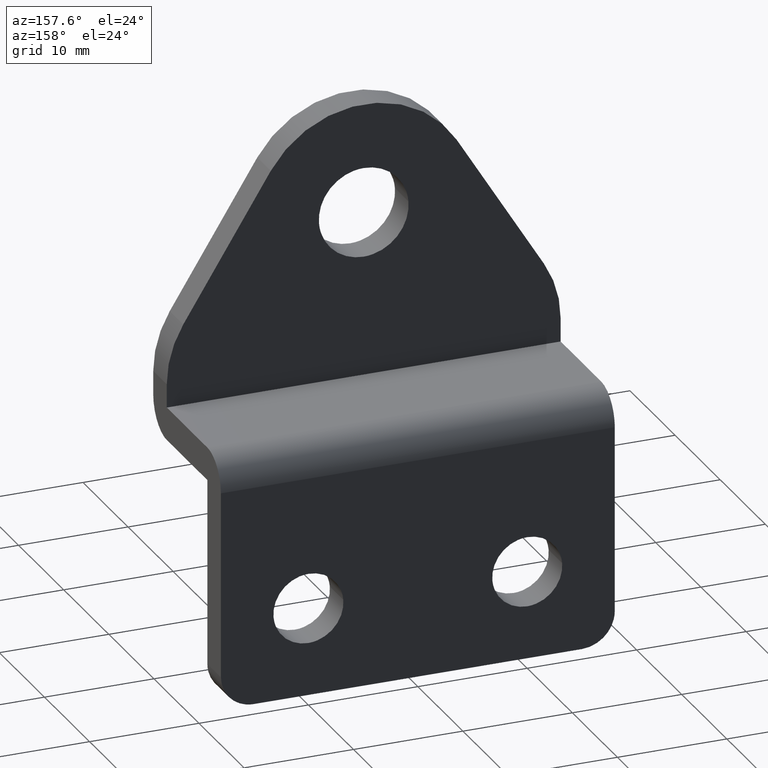
[diagram: clean part render]
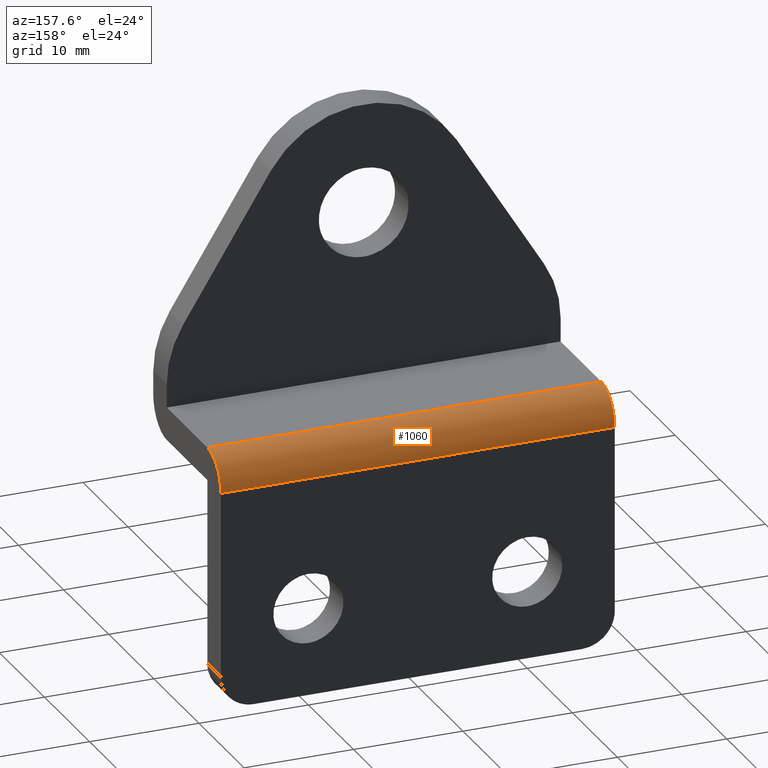
[diagram: same view with one face highlighted and labeled with its STEP entity id]
A machine part, auxiliary view. The second image highlights one B-rep face of the part: STEP entity #1060.
In plain terms, the highlighted face is a freeform B-spline surface patch.
Its self-contained STEP definition (entity closure, byte-faithful):
#1000=CARTESIAN_POINT('',(-18.900007175000049,-3.078530844923621,22.998971974926668));
#1001=CARTESIAN_POINT('',(18.922500179375010,-3.078530844923621,22.998971974926668));
#1002=CARTESIAN_POINT('',(-18.900007175000056,0.224954401664160,23.085476780498787));
#1003=CARTESIAN_POINT('',(18.922500179375010,0.224954401664160,23.085476780498787));
#1004=CARTESIAN_POINT('',(-18.900007175000056,-0.007426561857573,19.789039773122049));
#1005=CARTESIAN_POINT('',(18.922500179375014,-0.007426561857573,19.789039773122049));
#1013=(BOUNDED_SURFACE()B_SPLINE_SURFACE(1,2,((#1000,#1002,#1004),(#1001,#1003,#1005)),.UNSPECIFIED.,.F.,.F.,.U.)B_SPLINE_SURFACE_WITH_KNOTS((2,2),(3,3),(0.0,37.822507354375063),(0.0,5.313427032265082),.UNSPECIFIED.)GEOMETRIC_REPRESENTATION_ITEM()RATIONAL_B_SPLINE_SURFACE(((1.0,0.670944223154768,0.996392648609106),(1.0,0.670944223154768,0.996392648609106)))REPRESENTATION_ITEM('')SURFACE());
#1014=CARTESIAN_POINT('',(-18.000007000000000,-3.0,23.0));
#1015=VERTEX_POINT('',#1014);
#1016=CARTESIAN_POINT('',(-18.000007000000000,0.0,20.0));
#1017=VERTEX_POINT('',#1016);
#1018=CARTESIAN_POINT('',(-18.000007000000050,-3.0,23.0));
#1019=CARTESIAN_POINT('',(-18.000007000000050,0.0,22.999999999999993));
#1020=CARTESIAN_POINT('',(-18.000007000000050,0.0,20.0));
#1028=(BOUNDED_CURVE()B_SPLINE_CURVE(2,(#1018,#1019,#1020),.UNSPECIFIED.,.F.,.U.)CURVE()GEOMETRIC_REPRESENTATION_ITEM()QUASI_UNIFORM_CURVE()RATIONAL_B_SPLINE_CURVE((1.0,0.707106781186548,1.0))REPRESENTATION_ITEM(''));
#1029=EDGE_CURVE('',#1015,#1017,#1028,.T.);
#1030=ORIENTED_EDGE('',*,*,#1029,.F.);
#1031=CARTESIAN_POINT('',(18.0,-3.0,23.0));
#1032=VERTEX_POINT('',#1031);
#1033=CARTESIAN_POINT('',(18.0,-3.0,23.0));
#1034=CARTESIAN_POINT('',(-18.000007000000000,-3.0,23.0));
#1035=QUASI_UNIFORM_CURVE('',1,(#1033,#1034),.UNSPECIFIED.,.F.,.U.);
#1036=EDGE_CURVE('',#1032,#1015,#1035,.T.);
#1037=ORIENTED_EDGE('',*,*,#1036,.F.);
#1038=CARTESIAN_POINT('',(18.0,0.0,20.0));
#1039=VERTEX_POINT('',#1038);
#1040=CARTESIAN_POINT('',(18.0,0.0,20.0));
#1041=CARTESIAN_POINT('',(18.000000000000007,0.0,22.999999999999993));
#1042=CARTESIAN_POINT('',(18.0,-3.0,23.0));
#1050=(BOUNDED_CURVE()B_SPLINE_CURVE(2,(#1040,#1041,#1042),.UNSPECIFIED.,.F.,.U.)CURVE()GEOMETRIC_REPRESENTATION_ITEM()QUASI_UNIFORM_CURVE()RATIONAL_B_SPLINE_CURVE((1.0,0.707106781186548,1.0))REPRESENTATION_ITEM(''));
#1051=EDGE_CURVE('',#1039,#1032,#1050,.T.);
#1052=ORIENTED_EDGE('',*,*,#1051,.F.);
#1053=CARTESIAN_POINT('',(-18.000007000000000,0.0,20.0));
#1054=CARTESIAN_POINT('',(18.0,0.0,20.0));
#1055=QUASI_UNIFORM_CURVE('',1,(#1053,#1054),.UNSPECIFIED.,.F.,.U.);
#1056=EDGE_CURVE('',#1017,#1039,#1055,.T.);
#1057=ORIENTED_EDGE('',*,*,#1056,.F.);
#1058=EDGE_LOOP('',(#1030,#1037,#1052,#1057));
#1059=FACE_OUTER_BOUND('',#1058,.T.);
#1060=ADVANCED_FACE('',(#1059),#1013,.T.);